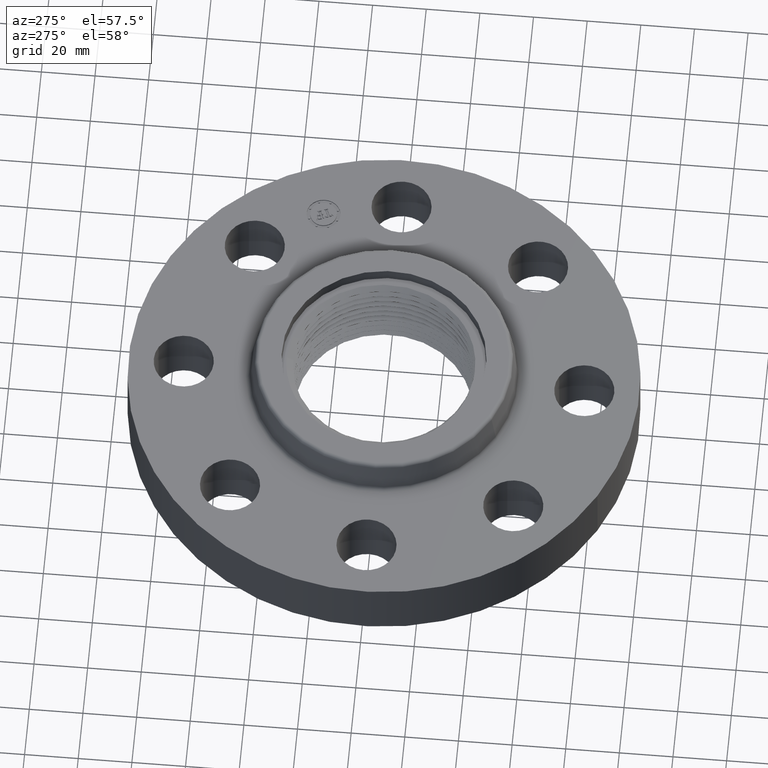
[diagram: clean part render]
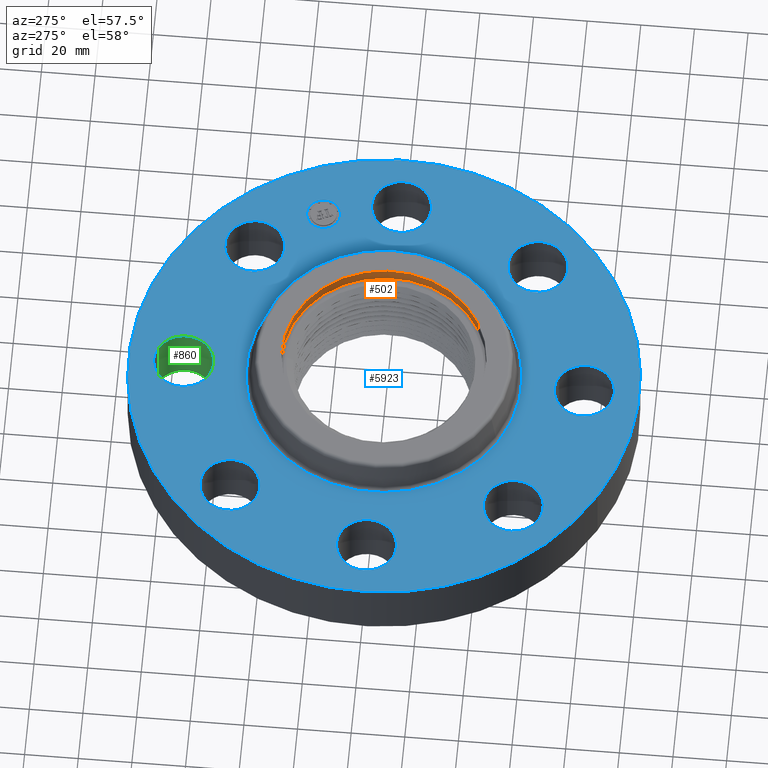
[diagram: same view with three faces highlighted in distinct colors, each labeled with its STEP entity id]
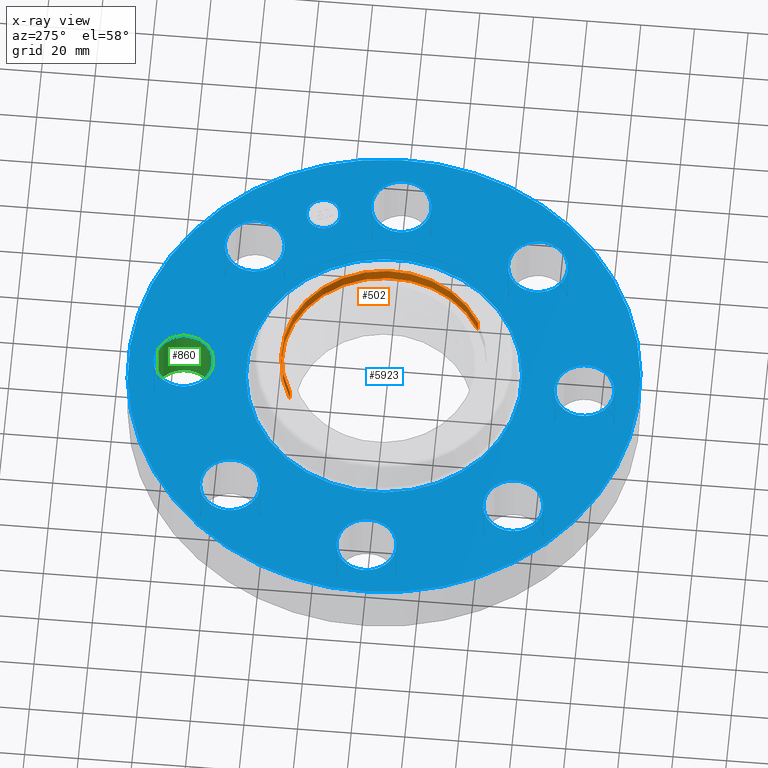
[diagram: x-ray of the same camera — body ghosted, the three highlighted faces saturated]
A machine part, auxiliary view with three faces highlighted in distinct colors.
The next image is the same camera in x-ray (body ghosted, the three faces saturated) — at least one of them is partly hidden behind the body in this view.
Their STEP definitions:

[orange] entity #502 — the highlighted cylindrical surface (partial cylindrical patch) has radius 38.1 mm, axis along (0, 0, 1).
#51=AXIS2_PLACEMENT_3D('Circle Axis2P3D',#49,#50,$) ;
#463=AXIS2_PLACEMENT_3D('Cylinder Axis2P3D',#460,#461,#462) ;
#493=AXIS2_PLACEMENT_3D('Circle Axis2P3D',#491,#492,$) ;
#44=CARTESIAN_POINT('Vertex',(-0.719138307909,1.31637384284,1.25000000001)) ;
#46=CARTESIAN_POINT('Vertex',(0.719138307909,-1.31637384284,1.25000000001)) ;
#49=CARTESIAN_POINT('Axis2P3D Location',(0.,0.,1.25000000001)) ;
#460=CARTESIAN_POINT('Axis2P3D Location',(0.,0.,1.25000000001)) ;
#469=CARTESIAN_POINT('Vertex',(0.719138307909,-1.31637384284,1.44000000001)) ;
#471=CARTESIAN_POINT('Vertex',(-0.719138307909,1.31637384284,1.44000000001)) ;
#474=CARTESIAN_POINT('Line Origine',(0.719138307909,-1.31637384284,1.34500000001)) ;
#479=CARTESIAN_POINT('Line Origine',(-0.719138307909,1.31637384284,1.34500000001)) ;
#491=CARTESIAN_POINT('Axis2P3D Location',(0.,0.,1.44000000001)) ;
#50=DIRECTION('Axis2P3D Direction',(0.,0.,-0.0393700787402)) ;
#461=DIRECTION('Axis2P3D Direction',(0.,0.,0.0393700787402)) ;
#462=DIRECTION('Axis2P3D XDirection',(0.0188750212049,-0.0345504945626,0.)) ;
#475=DIRECTION('Vector Direction',(0.,0.,0.0393700787402)) ;
#480=DIRECTION('Vector Direction',(0.,0.,0.0393700787402)) ;
#492=DIRECTION('Axis2P3D Direction',(0.,0.,0.0393700787402)) ;
#476=VECTOR('Line Direction',#475,0.0393700787402) ;
#481=VECTOR('Line Direction',#480,0.0393700787402) ;
#497=ORIENTED_EDGE('',*,*,#495,.F.) ;
#498=ORIENTED_EDGE('',*,*,#483,.F.) ;
#499=ORIENTED_EDGE('',*,*,#53,.F.) ;
#500=ORIENTED_EDGE('',*,*,#478,.T.) ;
#502=ADVANCED_FACE('PartBody',(#501),#464,.F.) ;
#52=CIRCLE('generated circle',#51,1.50000000001) ;
#494=CIRCLE('generated circle',#493,1.50000000001) ;
#464=CYLINDRICAL_SURFACE('generated cylinder',#463,1.50000000001) ;
#53=EDGE_CURVE('',#47,#45,#52,.F.) ;
#478=EDGE_CURVE('',#47,#470,#477,.T.) ;
#483=EDGE_CURVE('',#45,#472,#482,.T.) ;
#495=EDGE_CURVE('',#472,#470,#494,.F.) ;
#496=EDGE_LOOP('',(#497,#498,#499,#500)) ;
#501=FACE_OUTER_BOUND('',#496,.T.) ;
#477=LINE('Line',#474,#476) ;
#482=LINE('Line',#479,#481) ;
#45=VERTEX_POINT('',#44) ;
#47=VERTEX_POINT('',#46) ;
#470=VERTEX_POINT('',#469) ;
#472=VERTEX_POINT('',#471) ;

[blue] entity #5923 — the highlighted planar face has unit normal (0, 0, -1).
#524=AXIS2_PLACEMENT_3D('Circle Axis2P3D',#522,#523,$) ;
#536=AXIS2_PLACEMENT_3D('Circle Axis2P3D',#534,#535,$) ;
#560=AXIS2_PLACEMENT_3D('Circle Axis2P3D',#558,#559,$) ;
#579=AXIS2_PLACEMENT_3D('Circle Axis2P3D',#577,#578,$) ;
#596=AXIS2_PLACEMENT_3D('Circle Axis2P3D',#594,#595,$) ;
#631=AXIS2_PLACEMENT_3D('Circle Axis2P3D',#629,#630,$) ;
#753=AXIS2_PLACEMENT_3D('Circle Axis2P3D',#751,#752,$) ;
#765=AXIS2_PLACEMENT_3D('Circle Axis2P3D',#763,#764,$) ;
#796=AXIS2_PLACEMENT_3D('Circle Axis2P3D',#794,#795,$) ;
#808=AXIS2_PLACEMENT_3D('Circle Axis2P3D',#806,#807,$) ;
#839=AXIS2_PLACEMENT_3D('Circle Axis2P3D',#837,#838,$) ;
#851=AXIS2_PLACEMENT_3D('Circle Axis2P3D',#849,#850,$) ;
#882=AXIS2_PLACEMENT_3D('Circle Axis2P3D',#880,#881,$) ;
#894=AXIS2_PLACEMENT_3D('Circle Axis2P3D',#892,#893,$) ;
#925=AXIS2_PLACEMENT_3D('Circle Axis2P3D',#923,#924,$) ;
#937=AXIS2_PLACEMENT_3D('Circle Axis2P3D',#935,#936,$) ;
#968=AXIS2_PLACEMENT_3D('Circle Axis2P3D',#966,#967,$) ;
#980=AXIS2_PLACEMENT_3D('Circle Axis2P3D',#978,#979,$) ;
#1011=AXIS2_PLACEMENT_3D('Circle Axis2P3D',#1009,#1010,$) ;
#1023=AXIS2_PLACEMENT_3D('Circle Axis2P3D',#1021,#1022,$) ;
#5863=AXIS2_PLACEMENT_3D('Plane Axis2P3D',#5860,#5861,#5862) ;
#5907=AXIS2_PLACEMENT_3D('Circle Axis2P3D',#5905,#5906,$) ;
#5916=AXIS2_PLACEMENT_3D('Circle Axis2P3D',#5914,#5915,$) ;
#512=CARTESIAN_POINT('Vertex',(2.55386367278,0.210947236987,0.940000000004)) ;
#519=CARTESIAN_POINT('Vertex',(3.32613632725,-0.210947236987,0.940000000004)) ;
#522=CARTESIAN_POINT('Axis2P3D Location',(2.94000000001,0.,0.940000000004)) ;
#534=CARTESIAN_POINT('Axis2P3D Location',(2.94000000001,0.,0.940000000004)) ;
#555=CARTESIAN_POINT('Vertex',(1.79784576977,3.2909346071,0.940000000004)) ;
#558=CARTESIAN_POINT('Axis2P3D Location',(0.,0.,0.940000000004)) ;
#562=CARTESIAN_POINT('Vertex',(-1.79784576977,-3.2909346071,0.940000000004)) ;
#577=CARTESIAN_POINT('Axis2P3D Location',(0.,0.,0.940000000004)) ;
#594=CARTESIAN_POINT('Axis2P3D Location',(0.,0.,0.940000000004)) ;
#598=CARTESIAN_POINT('Vertex',(0.968605458611,1.77302039917,0.940000000004)) ;
#600=CARTESIAN_POINT('Vertex',(-0.968605458611,-1.77302039917,0.940000000004)) ;
#629=CARTESIAN_POINT('Axis2P3D Location',(0.,0.,0.940000000004)) ;
#741=CARTESIAN_POINT('Vertex',(-1.95501654299,1.6566920995,0.940000000004)) ;
#748=CARTESIAN_POINT('Vertex',(-2.2027713304,2.50109577389,0.940000000004)) ;
#751=CARTESIAN_POINT('Axis2P3D Location',(-2.0788939367,2.0788939367,0.940000000004)) ;
#763=CARTESIAN_POINT('Axis2P3D Location',(-2.0788939367,2.0788939367,0.940000000004)) ;
#784=CARTESIAN_POINT('Vertex',(0.210947236987,-2.55386367278,0.940000000004)) ;
#791=CARTESIAN_POINT('Vertex',(-0.210947236987,-3.32613632725,0.940000000004)) ;
#794=CARTESIAN_POINT('Axis2P3D Location',(-3.79459389627E-016,-2.94000000001,0.940000000004)) ;
#806=CARTESIAN_POINT('Axis2P3D Location',(-3.79459389627E-016,-2.94000000001,0.940000000004)) ;
#827=CARTESIAN_POINT('Vertex',(-0.210947236987,2.55386367278,0.940000000004)) ;
#834=CARTESIAN_POINT('Vertex',(0.210947236987,3.32613632725,0.940000000004)) ;
#837=CARTESIAN_POINT('Axis2P3D Location',(-5.40069238426E-016,2.94000000001,0.940000000004)) ;
#849=CARTESIAN_POINT('Axis2P3D Location',(-5.40069238426E-016,2.94000000001,0.940000000004)) ;
#870=CARTESIAN_POINT('Vertex',(-1.6566920995,-1.95501654299,0.940000000004)) ;
#877=CARTESIAN_POINT('Vertex',(-2.50109577389,-2.2027713304,0.940000000004)) ;
#880=CARTESIAN_POINT('Axis2P3D Location',(-2.0788939367,-2.0788939367,0.940000000004)) ;
#892=CARTESIAN_POINT('Axis2P3D Location',(-2.0788939367,-2.0788939367,0.940000000004)) ;
#913=CARTESIAN_POINT('Vertex',(1.6566920995,1.95501654299,0.940000000004)) ;
#920=CARTESIAN_POINT('Vertex',(2.50109577389,2.2027713304,0.940000000004)) ;
#923=CARTESIAN_POINT('Axis2P3D Location',(2.0788939367,2.0788939367,0.940000000004)) ;
#935=CARTESIAN_POINT('Axis2P3D Location',(2.0788939367,2.0788939367,0.940000000004)) ;
#956=CARTESIAN_POINT('Vertex',(-2.55386367278,-0.210947236987,0.940000000004)) ;
#963=CARTESIAN_POINT('Vertex',(-3.32613632725,0.210947236987,0.940000000004)) ;
#966=CARTESIAN_POINT('Axis2P3D Location',(-2.94000000001,-3.60046158951E-016,0.940000000004)) ;
#978=CARTESIAN_POINT('Axis2P3D Location',(-2.94000000001,-3.60046158951E-016,0.940000000004)) ;
#999=CARTESIAN_POINT('Vertex',(1.95501654299,-1.6566920995,0.940000000004)) ;
#1006=CARTESIAN_POINT('Vertex',(2.2027713304,-2.50109577389,0.940000000004)) ;
#1009=CARTESIAN_POINT('Axis2P3D Location',(2.0788939367,-2.0788939367,0.940000000004)) ;
#1021=CARTESIAN_POINT('Axis2P3D Location',(2.0788939367,-2.0788939367,0.940000000004)) ;
#5860=CARTESIAN_POINT('Axis2P3D Location',(0.,3.75000000001,0.940000000004)) ;
#5905=CARTESIAN_POINT('Axis2P3D Location',(2.71620582559,1.12508929116,0.940000000004)) ;
#5909=CARTESIAN_POINT('Vertex',(2.62149167608,1.35374947546,0.940000000004)) ;
#5911=CARTESIAN_POINT('Vertex',(2.8109199751,0.89642910686,0.940000000004)) ;
#5914=CARTESIAN_POINT('Axis2P3D Location',(2.71620582559,1.12508929116,0.940000000004)) ;
#523=DIRECTION('Axis2P3D Direction',(0.,-0.,-0.0393700787402)) ;
#535=DIRECTION('Axis2P3D Direction',(0.,-0.,-0.0393700787402)) ;
#559=DIRECTION('Axis2P3D Direction',(0.,0.,-0.0393700787402)) ;
#578=DIRECTION('Axis2P3D Direction',(0.,0.,-0.0393700787402)) ;
#595=DIRECTION('Axis2P3D Direction',(0.,0.,-0.0393700787402)) ;
#630=DIRECTION('Axis2P3D Direction',(0.,0.,-0.0393700787402)) ;
#752=DIRECTION('Axis2P3D Direction',(0.,0.,-0.0393700787402)) ;
#764=DIRECTION('Axis2P3D Direction',(0.,0.,-0.0393700787402)) ;
#795=DIRECTION('Axis2P3D Direction',(0.,-0.,-0.0393700787402)) ;
#807=DIRECTION('Axis2P3D Direction',(0.,-0.,-0.0393700787402)) ;
#838=DIRECTION('Axis2P3D Direction',(0.,0.,-0.0393700787402)) ;
#850=DIRECTION('Axis2P3D Direction',(0.,0.,-0.0393700787402)) ;
#881=DIRECTION('Axis2P3D Direction',(-0.,0.,-0.0393700787402)) ;
#893=DIRECTION('Axis2P3D Direction',(-0.,0.,-0.0393700787402)) ;
#924=DIRECTION('Axis2P3D Direction',(0.,0.,-0.0393700787402)) ;
#936=DIRECTION('Axis2P3D Direction',(0.,0.,-0.0393700787402)) ;
#967=DIRECTION('Axis2P3D Direction',(-0.,0.,-0.0393700787402)) ;
#979=DIRECTION('Axis2P3D Direction',(-0.,0.,-0.0393700787402)) ;
#1010=DIRECTION('Axis2P3D Direction',(0.,-0.,-0.0393700787402)) ;
#1022=DIRECTION('Axis2P3D Direction',(0.,-0.,-0.0393700787402)) ;
#5861=DIRECTION('Axis2P3D Direction',(0.,0.,-0.0393700787402)) ;
#5862=DIRECTION('Axis2P3D XDirection',(0.0393700787402,0.,0.)) ;
#5906=DIRECTION('Axis2P3D Direction',(0.,0.,-0.0393700787402)) ;
#5915=DIRECTION('Axis2P3D Direction',(0.,0.,-0.0393700787402)) ;
#5866=ORIENTED_EDGE('',*,*,#564,.F.) ;
#5867=ORIENTED_EDGE('',*,*,#581,.F.) ;
#5870=ORIENTED_EDGE('',*,*,#526,.T.) ;
#5871=ORIENTED_EDGE('',*,*,#538,.T.) ;
#5874=ORIENTED_EDGE('',*,*,#633,.T.) ;
#5875=ORIENTED_EDGE('',*,*,#602,.T.) ;
#5878=ORIENTED_EDGE('',*,*,#1025,.T.) ;
#5879=ORIENTED_EDGE('',*,*,#1013,.T.) ;
#5882=ORIENTED_EDGE('',*,*,#810,.T.) ;
#5883=ORIENTED_EDGE('',*,*,#798,.T.) ;
#5886=ORIENTED_EDGE('',*,*,#896,.T.) ;
#5887=ORIENTED_EDGE('',*,*,#884,.T.) ;
#5890=ORIENTED_EDGE('',*,*,#982,.T.) ;
#5891=ORIENTED_EDGE('',*,*,#970,.T.) ;
#5894=ORIENTED_EDGE('',*,*,#767,.T.) ;
#5895=ORIENTED_EDGE('',*,*,#755,.T.) ;
#5898=ORIENTED_EDGE('',*,*,#853,.T.) ;
#5899=ORIENTED_EDGE('',*,*,#841,.T.) ;
#5902=ORIENTED_EDGE('',*,*,#939,.T.) ;
#5903=ORIENTED_EDGE('',*,*,#927,.T.) ;
#5920=ORIENTED_EDGE('',*,*,#5913,.T.) ;
#5921=ORIENTED_EDGE('',*,*,#5918,.T.) ;
#5872=FACE_BOUND('',#5869,.T.) ;
#5876=FACE_BOUND('',#5873,.T.) ;
#5880=FACE_BOUND('',#5877,.T.) ;
#5884=FACE_BOUND('',#5881,.T.) ;
#5888=FACE_BOUND('',#5885,.T.) ;
#5892=FACE_BOUND('',#5889,.T.) ;
#5896=FACE_BOUND('',#5893,.T.) ;
#5900=FACE_BOUND('',#5897,.T.) ;
#5904=FACE_BOUND('',#5901,.T.) ;
#5922=FACE_BOUND('',#5919,.T.) ;
#5923=ADVANCED_FACE('PartBody',(#5868,#5872,#5876,#5880,#5884,#5888,#5892,#5896,#5900,#5904,#5922),#5864,.F.) ;
#525=CIRCLE('generated circle',#524,0.440000000002) ;
#537=CIRCLE('generated circle',#536,0.440000000002) ;
#561=CIRCLE('generated circle',#560,3.75000000002) ;
#580=CIRCLE('generated circle',#579,3.75000000002) ;
#597=CIRCLE('generated circle',#596,2.02034597788) ;
#632=CIRCLE('generated circle',#631,2.02034597788) ;
#754=CIRCLE('generated circle',#753,0.440000000002) ;
#766=CIRCLE('generated circle',#765,0.440000000002) ;
#797=CIRCLE('generated circle',#796,0.440000000002) ;
#809=CIRCLE('generated circle',#808,0.440000000002) ;
#840=CIRCLE('generated circle',#839,0.440000000002) ;
#852=CIRCLE('generated circle',#851,0.440000000002) ;
#883=CIRCLE('generated circle',#882,0.440000000002) ;
#895=CIRCLE('generated circle',#894,0.440000000002) ;
#926=CIRCLE('generated circle',#925,0.440000000002) ;
#938=CIRCLE('generated circle',#937,0.440000000002) ;
#969=CIRCLE('generated circle',#968,0.440000000002) ;
#981=CIRCLE('generated circle',#980,0.440000000002) ;
#1012=CIRCLE('generated circle',#1011,0.440000000002) ;
#1024=CIRCLE('generated circle',#1023,0.440000000002) ;
#5908=CIRCLE('generated circle',#5907,0.247500000001) ;
#5917=CIRCLE('generated circle',#5916,0.247500000001) ;
#526=EDGE_CURVE('',#513,#520,#525,.T.) ;
#538=EDGE_CURVE('',#520,#513,#537,.T.) ;
#564=EDGE_CURVE('',#556,#563,#561,.T.) ;
#581=EDGE_CURVE('',#563,#556,#580,.T.) ;
#602=EDGE_CURVE('',#599,#601,#597,.T.) ;
#633=EDGE_CURVE('',#601,#599,#632,.T.) ;
#755=EDGE_CURVE('',#742,#749,#754,.T.) ;
#767=EDGE_CURVE('',#749,#742,#766,.T.) ;
#798=EDGE_CURVE('',#785,#792,#797,.T.) ;
#810=EDGE_CURVE('',#792,#785,#809,.T.) ;
#841=EDGE_CURVE('',#828,#835,#840,.T.) ;
#853=EDGE_CURVE('',#835,#828,#852,.T.) ;
#884=EDGE_CURVE('',#871,#878,#883,.T.) ;
#896=EDGE_CURVE('',#878,#871,#895,.T.) ;
#927=EDGE_CURVE('',#914,#921,#926,.T.) ;
#939=EDGE_CURVE('',#921,#914,#938,.T.) ;
#970=EDGE_CURVE('',#957,#964,#969,.T.) ;
#982=EDGE_CURVE('',#964,#957,#981,.T.) ;
#1013=EDGE_CURVE('',#1000,#1007,#1012,.T.) ;
#1025=EDGE_CURVE('',#1007,#1000,#1024,.T.) ;
#5913=EDGE_CURVE('',#5910,#5912,#5908,.T.) ;
#5918=EDGE_CURVE('',#5912,#5910,#5917,.T.) ;
#5865=EDGE_LOOP('',(#5866,#5867)) ;
#5869=EDGE_LOOP('',(#5870,#5871)) ;
#5873=EDGE_LOOP('',(#5874,#5875)) ;
#5877=EDGE_LOOP('',(#5878,#5879)) ;
#5881=EDGE_LOOP('',(#5882,#5883)) ;
#5885=EDGE_LOOP('',(#5886,#5887)) ;
#5889=EDGE_LOOP('',(#5890,#5891)) ;
#5893=EDGE_LOOP('',(#5894,#5895)) ;
#5897=EDGE_LOOP('',(#5898,#5899)) ;
#5901=EDGE_LOOP('',(#5902,#5903)) ;
#5919=EDGE_LOOP('',(#5920,#5921)) ;
#5868=FACE_OUTER_BOUND('',#5865,.T.) ;
#5864=PLANE('',#5863) ;
#513=VERTEX_POINT('',#512) ;
#520=VERTEX_POINT('',#519) ;
#556=VERTEX_POINT('',#555) ;
#563=VERTEX_POINT('',#562) ;
#599=VERTEX_POINT('',#598) ;
#601=VERTEX_POINT('',#600) ;
#742=VERTEX_POINT('',#741) ;
#749=VERTEX_POINT('',#748) ;
#785=VERTEX_POINT('',#784) ;
#792=VERTEX_POINT('',#791) ;
#828=VERTEX_POINT('',#827) ;
#835=VERTEX_POINT('',#834) ;
#871=VERTEX_POINT('',#870) ;
#878=VERTEX_POINT('',#877) ;
#914=VERTEX_POINT('',#913) ;
#921=VERTEX_POINT('',#920) ;
#957=VERTEX_POINT('',#956) ;
#964=VERTEX_POINT('',#963) ;
#1000=VERTEX_POINT('',#999) ;
#1007=VERTEX_POINT('',#1006) ;
#5910=VERTEX_POINT('',#5909) ;
#5912=VERTEX_POINT('',#5911) ;

[green] entity #860 — the highlighted cylindrical surface (edge-blend (fillet) strip) has radius 11.176 mm, axis along (0, 0, -1).
#319=AXIS2_PLACEMENT_3D('Circle Axis2P3D',#317,#318,$) ;
#821=AXIS2_PLACEMENT_3D('Cylinder Axis2P3D',#818,#819,#820) ;
#851=AXIS2_PLACEMENT_3D('Circle Axis2P3D',#849,#850,$) ;
#312=CARTESIAN_POINT('Vertex',(-0.210947236987,2.55386367278,0.)) ;
#314=CARTESIAN_POINT('Vertex',(0.210947236987,3.32613632725,0.)) ;
#317=CARTESIAN_POINT('Axis2P3D Location',(-6.64385432059E-016,2.94000000001,0.)) ;
#818=CARTESIAN_POINT('Axis2P3D Location',(-5.40069238426E-016,2.94000000001,0.93606299213)) ;
#823=CARTESIAN_POINT('Line Origine',(-0.210947236987,2.55386367278,0.470000000002)) ;
#827=CARTESIAN_POINT('Vertex',(-0.210947236987,2.55386367278,0.940000000004)) ;
#830=CARTESIAN_POINT('Line Origine',(0.210947236987,3.32613632725,0.470000000002)) ;
#834=CARTESIAN_POINT('Vertex',(0.210947236987,3.32613632725,0.940000000004)) ;
#849=CARTESIAN_POINT('Axis2P3D Location',(-5.40069238426E-016,2.94000000001,0.940000000004)) ;
#318=DIRECTION('Axis2P3D Direction',(0.,0.,-0.0393700787402)) ;
#819=DIRECTION('Axis2P3D Direction',(0.,0.,-0.0393700787402)) ;
#820=DIRECTION('Axis2P3D XDirection',(0.0188750212049,0.0345504945626,0.)) ;
#824=DIRECTION('Vector Direction',(0.,0.,-0.0393700787402)) ;
#831=DIRECTION('Vector Direction',(0.,0.,-0.0393700787402)) ;
#850=DIRECTION('Axis2P3D Direction',(0.,0.,-0.0393700787402)) ;
#825=VECTOR('Line Direction',#824,0.0393700787402) ;
#832=VECTOR('Line Direction',#831,0.0393700787402) ;
#855=ORIENTED_EDGE('',*,*,#836,.F.) ;
#856=ORIENTED_EDGE('',*,*,#321,.T.) ;
#857=ORIENTED_EDGE('',*,*,#829,.T.) ;
#858=ORIENTED_EDGE('',*,*,#853,.F.) ;
#860=ADVANCED_FACE('PartBody',(#859),#822,.F.) ;
#320=CIRCLE('generated circle',#319,0.440000000002) ;
#852=CIRCLE('generated circle',#851,0.440000000002) ;
#822=CYLINDRICAL_SURFACE('generated cylinder',#821,0.440000000002) ;
#321=EDGE_CURVE('',#315,#313,#320,.T.) ;
#829=EDGE_CURVE('',#313,#828,#826,.F.) ;
#836=EDGE_CURVE('',#315,#835,#833,.F.) ;
#853=EDGE_CURVE('',#835,#828,#852,.T.) ;
#854=EDGE_LOOP('',(#855,#856,#857,#858)) ;
#859=FACE_OUTER_BOUND('',#854,.T.) ;
#826=LINE('Line',#823,#825) ;
#833=LINE('Line',#830,#832) ;
#313=VERTEX_POINT('',#312) ;
#315=VERTEX_POINT('',#314) ;
#828=VERTEX_POINT('',#827) ;
#835=VERTEX_POINT('',#834) ;